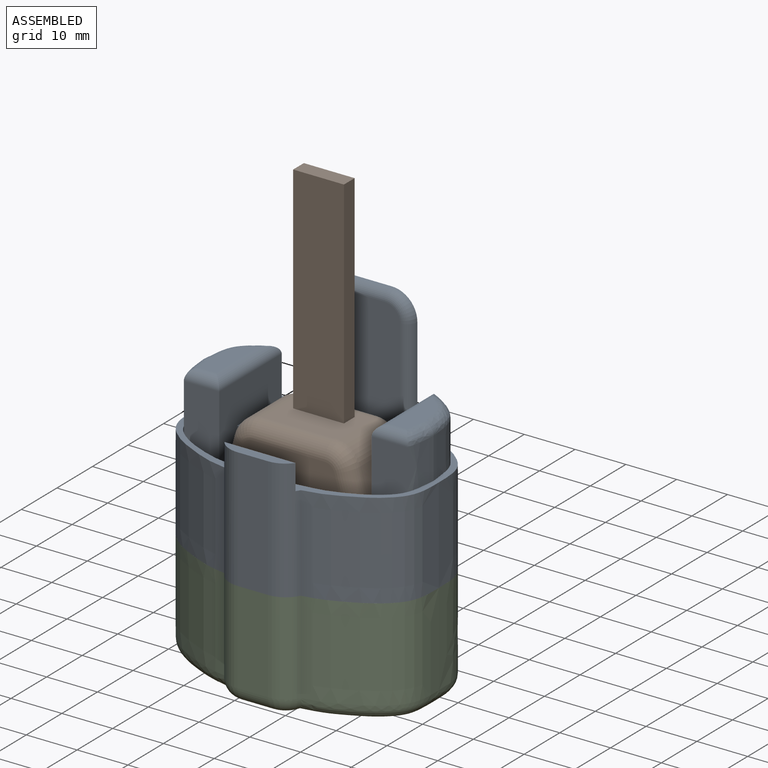
[diagram: assembled view]
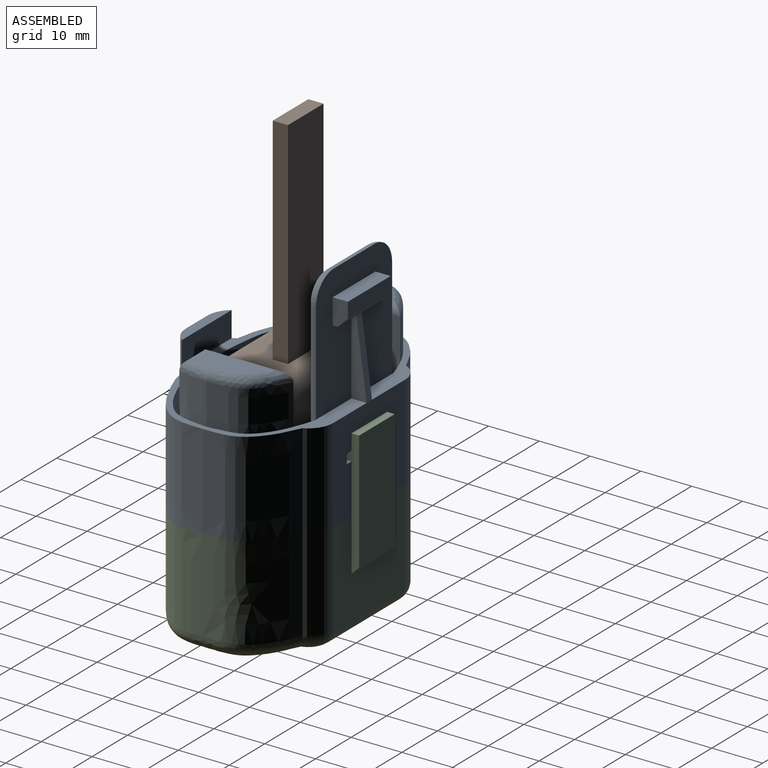
[diagram: assembled view, second angle]
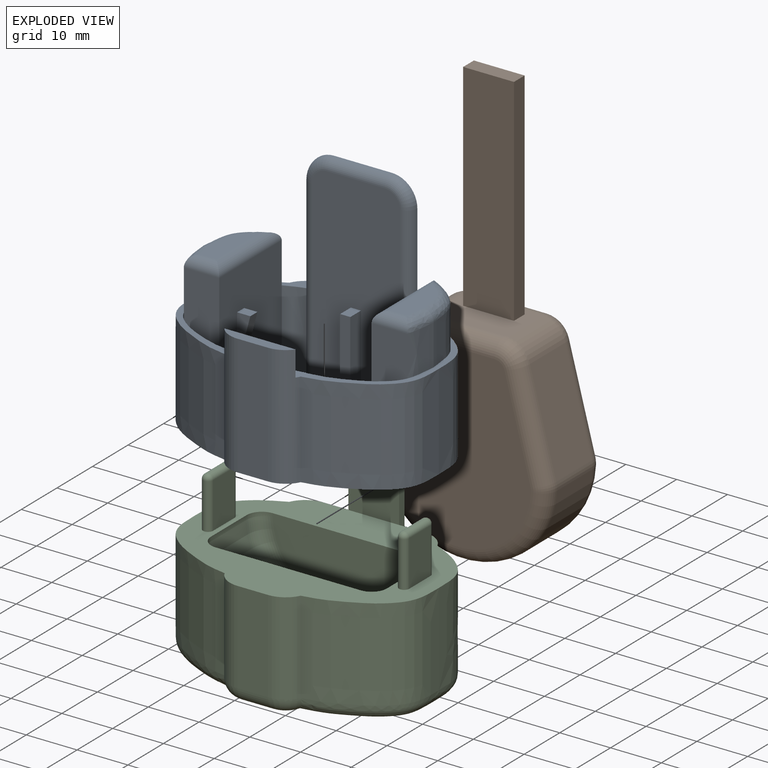
[diagram: exploded view]
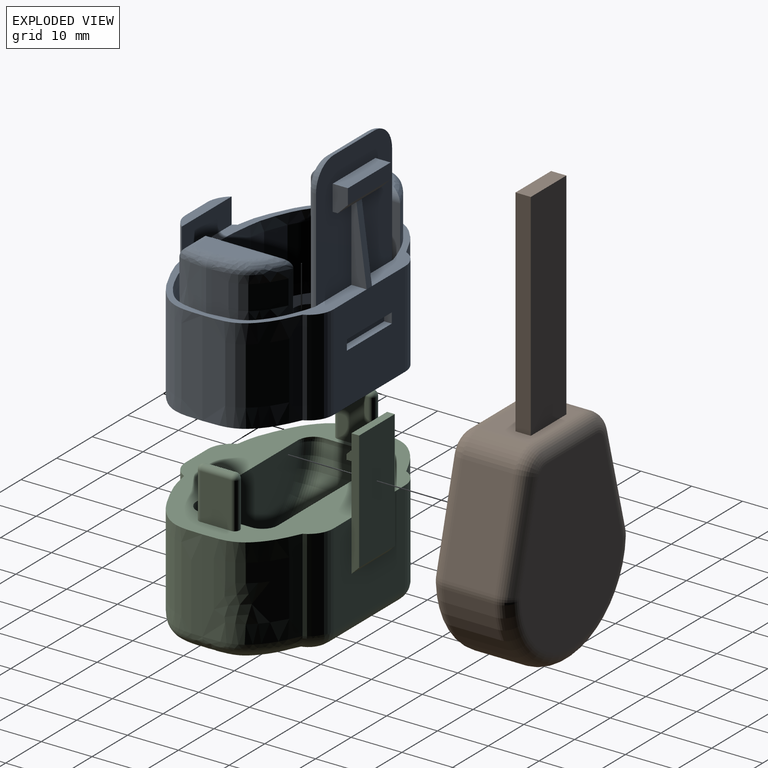
[diagram: exploded view, second angle]
ASSEMBLY  parts=3 mates=2
PART A: 108 faces, bbox 48.5x34.4x44.9 mm
  f0: plane 20.06x18.8mm, normal (0,1,0), area 351.2mm2, adj f12,f15,f57,f58,f92,f103,f104,f105
  f1: plane 2.62x2mm, normal (0,0,1), area 5.2mm2, adj f4,f5,f8,f78
  f2: plane 2.62x2mm, normal (0,0,1), area 5.2mm2, adj f21,f24,f32,f81
  f3: plane 3x2mm, normal (0,0,1), area 6mm2, adj f6,f7,f25,f83
  f4: plane 23.32x17.89mm, normal (1,0,0), area 319.7mm2, adj f1,f5,f8,f9,f17,f26,f39,f74
  f5: plane 9.91x2.62mm, normal (0,-1,0), area 13mm2, adj f1,f4,f78
  f6: plane 15x3mm, normal (1,0,0), area 45mm2, adj f3,f10,f25,f83
  f7: plane 15x3mm, normal (-1,0,0), area 45mm2, adj f3,f9,f25,f83
  f8: plane 9.91x2.62mm, normal (0,1,0), area 13mm2, adj f1,f4,f78
  f9: plane 14.02x5.55mm, normal (0,0,1), area 49.1mm2, adj f4,f7,f25,f26,f27,f61,f80,f83
  f10: plane 14.02x5.55mm, normal (0,0,1), area 49.1mm2, adj f6,f22,f23,f25,f32,f65,f83,f90
  f11: plane 15x3mm, normal (1,0,0), area 30mm2, adj f12,f13,f14,f15,f56
  f12: plane 1.52x0.05mm, normal (0,1,0), area 0.1mm2, adj f0,f11,f55,f56
  f13: plane 25x21.4mm, normal (0,1,0), area 441.8mm2, adj f11,f14,f15,f49,f50,f51,f52,f55
  f14: plane 5.25x1mm, normal (0,0,-1), area 5.3mm2, adj f11,f13,f52,f54
  f15: plane 48.1x32.01mm, normal (0,0,1), area 222.6mm2, adj f0,f11,f13,f16,f19,f20,f22,f23
  f16: extruded ~20.97x15mm, area 352mm2, adj f15,f17,f34,f35
  f17: plane 23x6.97mm, normal (0,-1,0), area 157.8mm2, adj f4,f16,f35,f42,f72,f79
  f18: plane 23x6.97mm, normal (0,-1,0), area 157.8mm2, adj f19,f32,f36,f44,f68,f87
  f19: extruded ~20.97x15mm, area 352mm2, adj f15,f18,f20,f36
  f20: plane 15x6mm, normal (1,0,0), area 90mm2, adj f15,f19,f36,f82
  f21: plane 9.91x2.62mm, normal (0,-1,0), area 13mm2, adj f2,f32,f81
  f22: plane 15x0.27mm, normal (0,-1,0), area 4.1mm2, adj f10,f15,f23,f65
  f23: extruded ~15x4.03mm, area 64.2mm2, adj f10,f15,f22,f32
  f24: plane 9.91x2.62mm, normal (0,1,0), area 13mm2, adj f2,f32,f81
  f25: plane 38x17.4mm, normal (0,-1,0), area 627.3mm2, adj f3,f6,f7,f9,f10,f61,f62,f63
  f26: extruded ~15x4.03mm, area 64.2mm2, adj f4,f9,f15,f27
  f27: plane 15x0.27mm, normal (0,-1,0), area 4.1mm2, adj f9,f15,f26,f61
  f28: extruded ~18.79x13.07mm, area 331mm2, adj f15,f33,f57,f92
  f29: extruded ~18.79x13.07mm, area 331mm2, adj f15,f30,f58,f92
  f30: extruded ~18.79x16.54mm, area 470.6mm2, adj f15,f29,f59,f92
  f31: plane 23.79x6.03mm, normal (0,-1,0), area 143.3mm2, adj f38,f59,f60,f92
  f32: plane 23.32x17.89mm, normal (-1,0,0), area 319.7mm2, adj f2,f10,f18,f21,f23,f24,f47,f66
  f33: extruded ~18.79x16.54mm, area 470.6mm2, adj f15,f28,f60,f92
  f34: plane 15x6mm, normal (-1,0,0), area 90mm2, adj f15,f16,f35,f82
  f35: plane 21.14x8.22mm, normal (0,0,1), area 97.7mm2, adj f16,f17,f34,f79,f82
  f36: plane 21.14x8.22mm, normal (0,0,1), area 97.7mm2, adj f18,f19,f20,f82,f87
  f37: plane 14.03x5mm, normal (0,1,0), area 70.1mm2, adj f15,f38,f59,f60
  f38: plane 14.03x2mm, normal (0,0,1), area 23.2mm2, adj f31,f37,f59,f60
  f39: extruded ~10.57x8mm, area 113.9mm2, adj f4,f15,f40,f76
  f40: extruded ~8x1mm, area 8mm2, adj f15,f39,f41,f77
  f41: extruded ~8x1mm, area 8mm2, adj f15,f40,f42,f75
  f42: extruded ~8x5mm, area 40.9mm2, adj f15,f17,f41,f73
  f43: plane 12.31x3.99mm, normal (0,0,1), area 40.2mm2, adj f72,f73,f74,f75,f76,f77
  f44: extruded ~8x5mm, area 40.9mm2, adj f15,f18,f45,f70
  f45: extruded ~8x1mm, area 8mm2, adj f15,f44,f46,f71
  f46: extruded ~8x1mm, area 8mm2, adj f15,f45,f47,f69
  f47: extruded ~10.57x8mm, area 113.9mm2, adj f15,f32,f46,f67
  f48: plane 12.32x4mm, normal (0,0,1), area 40.1mm2, adj f66,f67,f68,f69,f70,f71
  f49: plane 5.25x1mm, normal (0,0,-1), area 5.3mm2, adj f13,f50,f54,f55
  f50: plane 5x3mm, normal (-1,0,0), area 13mm2, adj f13,f49,f51,f53,f54
  f51: plane 12x3mm, normal (0,0,1), area 36mm2, adj f13,f50,f52,f53
  f52: plane 5x3mm, normal (1,0,0), area 13mm2, adj f13,f14,f51,f53,f54
  f53: plane 12x3mm, normal (0,1,0), area 36mm2, adj f50,f51,f52,f54
  f54: plane 12x2mm, normal (0,0.71,-0.71), area 33.9mm2, adj f14,f49,f50,f52,f53,f56
  f55: plane 15x3mm, normal (-1,0,0), area 30mm2, adj f12,f13,f15,f49,f56
  f56: plane 14.96x2mm, normal (0,0.99,0.13), area 22.6mm2, adj f11,f12,f54,f55
  f57: cylinder r=5mm len=18.79mm, axis (0,0,1), area 107.6mm2, adj f0,f15,f28,f92
  f58: cylinder r=5mm len=18.79mm, axis (0,0,1), area 107.6mm2, adj f0,f15,f29,f92
  f59: cylinder r=5mm len=23.79mm, axis (0,0,1), area 127.8mm2, adj f15,f30,f31,f37,f38,f92
  f60: cylinder r=5mm len=23.79mm, axis (0,0,1), area 127.8mm2, adj f15,f31,f33,f37,f38,f92
  f61: cylinder r=2mm len=35mm, axis (0,0,-1), area 110mm2, adj f9,f13,f25,f27,f62
  f62: torus R=3mm, axis (0,-1,0), area 21.1mm2, adj f13,f25,f61,f63
  f63: cylinder r=2mm len=11.4mm, axis (1,0,0), area 35.8mm2, adj f13,f25,f62,f64
  f64: torus R=3mm, axis (0,-1,0), area 21.1mm2, adj f13,f25,f63,f65
  f65: cylinder r=2mm len=35mm, axis (0,0,1), area 110mm2, adj f10,f13,f22,f25,f64
  f66: cylinder r=2mm len=17.57mm, axis (0,1,0), area 46.9mm2, adj f32,f48,f67,f68
  f67: bspline ~15.46x9.37mm, area 37.2mm2, adj f47,f48,f66,f69
  f68: cylinder r=2mm len=6.97mm, axis (1,0,0), area 16.5mm2, adj f18,f48,f66,f70
  f69: bspline ~2.13x2mm, area 2.9mm2, adj f46,f48,f67,f71
  f70: bspline ~14.16x3.62mm, area 13mm2, adj f44,f48,f68,f71
  f71: bspline ~2.13x2mm, area 2.9mm2, adj f45,f48,f69,f70
  f72: cylinder r=2mm len=6.97mm, axis (1,0,0), area 16.5mm2, adj f17,f43,f73,f74
  f73: bspline ~14.16x3.62mm, area 13mm2, adj f42,f43,f72,f75
  f74: cylinder r=2mm len=17.57mm, axis (0,1,0), area 46.9mm2, adj f4,f43,f72,f76
  f75: bspline ~2.12x2mm, area 2.9mm2, adj f41,f43,f73,f77
  f76: bspline ~20.06x9.77mm, area 37.2mm2, adj f39,f43,f74,f77
  f77: bspline ~2.13x2mm, area 2.9mm2, adj f40,f43,f75,f76
  f78: plane 18.11x10mm, normal (0.97,0,-0.26), area 105.3mm2, adj f1,f4,f5,f8,f79,f80,f84
  f79: cylinder r=3mm len=8.97mm, axis (0.26,0,0.97), area 21.7mm2, adj f4,f17,f35,f78,f82,f88,f92
  f80: cylinder r=3mm len=8.97mm, axis (-0.26,0,-0.97), area 26.6mm2, adj f4,f9,f78,f83,f91,f92
  f81: plane 18.11x10mm, normal (-0.97,0,-0.26), area 105.3mm2, adj f2,f21,f24,f32,f85,f87,f90
  f82: plane 28.49x18.79mm, normal (0,1,0), area 134.1mm2, adj f15,f20,f34,f35,f36,f79,f87,f92
  f83: plane 28.49x18.79mm, normal (0,-1,0), area 134.1mm2, adj f3,f6,f7,f9,f10,f80,f90,f92
  f84: cylinder r=5mm len=10mm, axis (0,1,0), area 6.9mm2, adj f78,f88,f91,f92
  f85: cylinder r=5mm len=10mm, axis (0,1,0), area 6.9mm2, adj f81,f86,f89,f92
  f86: torus R=2mm, axis (0,-1,0), area 1.3mm2, adj f85,f87,f92
  f87: cylinder r=3mm len=8.97mm, axis (0.26,0,-0.97), area 21.7mm2, adj f18,f32,f36,f81,f82,f86,f92
  f88: torus R=2mm, axis (0,-1,0), area 1.3mm2, adj f79,f84,f92
  f89: torus R=2mm, axis (0,-1,0), area 1.3mm2, adj f85,f90,f92
  f90: cylinder r=3mm len=8.97mm, axis (-0.26,0,0.97), area 26.6mm2, adj f10,f32,f81,f83,f89,f92
  f91: torus R=2mm, axis (0,-1,0), area 1.3mm2, adj f80,f84,f92
  f92: plane 48.5x34.41mm, normal (0,0,-1), area 725.9mm2, adj f0,f28,f29,f30,f31,f33,f57,f58
  f93: plane 10x8mm, normal (-1,0,0), area 80mm2, adj f92,f94,f96,f97
  f94: plane 10x2mm, normal (0,-1,0), area 20mm2, adj f92,f93,f95,f97
  f95: plane 10x8mm, normal (1,0,0), area 80mm2, adj f92,f94,f96,f97
  f96: plane 10x2mm, normal (0,1,0), area 20mm2, adj f92,f93,f95,f97
  f97: plane 8x2mm, normal (0,0,-1), area 16mm2, adj f93,f94,f95,f96
  f98: plane 10x2mm, normal (0,-1,0), area 20mm2, adj f92,f99,f101,f102
  f99: plane 10x8mm, normal (1,0,0), area 80mm2, adj f92,f98,f100,f102
  f100: plane 10x2mm, normal (0,1,0), area 20mm2, adj f92,f99,f101,f102
  f101: plane 10x8mm, normal (-1,0,0), area 80mm2, adj f92,f98,f100,f102
  f102: plane 8x2mm, normal (0,0,-1), area 16mm2, adj f98,f99,f100,f101
  f103: plane 2x1.5mm, normal (1,0,0), area 3mm2, adj f0,f104,f106,f107
  f104: plane 12.63x1.5mm, normal (0,0,-1), area 18.9mm2, adj f0,f103,f105,f107
  f105: plane 2x1.5mm, normal (-1,0,0), area 3mm2, adj f0,f104,f106,f107
  f106: plane 12.63x1.5mm, normal (0,0,1), area 18.9mm2, adj f0,f103,f105,f107
  f107: plane 12.63x2mm, normal (0,1,0), area 25.3mm2, adj f103,f104,f105,f106
PART B: 31 faces, bbox 37.5x85.3x16 mm
  f0: plane 19.6x10mm, normal (-0.97,-0.26,0), area 202.7mm2, adj f7,f9,f12,f19
  f1: plane 14.3x10mm, normal (0,-1,0), area 113mm2, adj f8,f9,f11,f20,f26,f28,f29,f30
  f2: plane 19.6x10mm, normal (0.97,-0.26,0), area 202.7mm2, adj f6,f8,f15,f24
  f3: cylinder r=17.35mm len=34.66mm, axis (0,0,-1), area 528.3mm2, adj f6,f7,f16,f23
  f4: plane 35.35x28.67mm, normal (0,0,1), area 804.2mm2, adj f10,f11,f12,f13,f14,f15,f16,f17
  f5: plane 35.35x28.67mm, normal (0,0,-1), area 804.2mm2, adj f18,f19,f20,f21,f22,f23,f24,f25
  f6: cylinder r=5mm len=10mm, axis (0,0,-1), area 15.3mm2, adj f2,f3,f17,f25
  f7: cylinder r=5mm len=10mm, axis (0,0,-1), area 15.3mm2, adj f0,f3,f14,f21
  f8: cylinder r=5mm len=10mm, axis (0,0,1), area 65.6mm2, adj f1,f2,f13,f22
  f9: cylinder r=5mm len=10mm, axis (0,0,-1), area 65.6mm2, adj f0,f1,f10,f18
  f10: torus R=2mm, axis (0,0,1), area 24.2mm2, adj f4,f9,f11,f12
  f11: cylinder r=3mm len=14.3mm, axis (-1,0,0), area 67.4mm2, adj f1,f4,f10,f13
  f12: cylinder r=3mm len=20.36mm, axis (-0.26,0.97,0), area 95.5mm2, adj f0,f4,f10,f14
  f13: torus R=2mm, axis (0,0,1), area 24.2mm2, adj f4,f8,f11,f15
  f14: torus R=2mm, axis (0,0,1), area 5.7mm2, adj f4,f7,f12,f16
  f15: cylinder r=3mm len=20.36mm, axis (-0.26,-0.97,0), area 95.5mm2, adj f2,f4,f13,f17
  f16: torus R=14.35mm, axis (0,0,1), area 233.3mm2, adj f3,f4,f14,f17
  f17: torus R=2mm, axis (0,0,1), area 5.7mm2, adj f4,f6,f15,f16
  f18: torus R=2mm, axis (0,0,1), area 24.2mm2, adj f5,f9,f19,f20
  f19: cylinder r=3mm len=20.36mm, axis (0.26,-0.97,0), area 95.5mm2, adj f0,f5,f18,f21
  f20: cylinder r=3mm len=14.3mm, axis (1,0,0), area 67.4mm2, adj f1,f5,f18,f22
  f21: torus R=2mm, axis (0,0,1), area 5.7mm2, adj f5,f7,f19,f23
  f22: torus R=2mm, axis (0,0,1), area 24.2mm2, adj f5,f8,f20,f24
  f23: torus R=14.35mm, axis (0,0,1), area 233.3mm2, adj f3,f5,f21,f25
  f24: cylinder r=3mm len=20.36mm, axis (0.26,0.97,0), area 95.5mm2, adj f2,f5,f22,f25
  f25: torus R=2mm, axis (0,0,1), area 5.7mm2, adj f5,f6,f23,f24
  f26: plane 42.5x3mm, normal (-1,0,0), area 127.5mm2, adj f1,f27,f29,f30
  f27: plane 10x3mm, normal (0,-1,0), area 30mm2, adj f26,f28,f29,f30
  f28: plane 42.5x3mm, normal (1,0,0), area 127.5mm2, adj f1,f27,f29,f30
  f29: plane 42.5x10mm, normal (0,0,1), area 425mm2, adj f1,f26,f27,f28
  f30: plane 42.5x10mm, normal (0,0,-1), area 425mm2, adj f1,f26,f27,f28
PART C: 61 faces, bbox 48.1x35.5x36.2 mm
  f0: plane 10x10mm, normal (0,-1,0), area 100mm2, adj f1,f52,f54,f58
  f1: plane 48.1x34.01mm, normal (0,0,1), area 727.6mm2, adj f0,f5,f6,f7,f8,f9,f10,f11
  f2: cylinder r=17.35mm len=34.66mm, axis (0,1,0), area 528.3mm2, adj f3,f4,f7,f12
  f3: torus R=14.35mm, axis (0,-1,0), area 233.3mm2, adj f2,f6,f9,f14
  f4: torus R=14.35mm, axis (0,-1,0), area 233.3mm2, adj f2,f5,f11,f13
  f5: torus R=2mm, axis (0,-1,0), area 3.7mm2, adj f1,f4,f7,f13,f15
  f6: torus R=2mm, axis (0,-1,0), area 3.7mm2, adj f1,f3,f7,f14,f16
  f7: cylinder r=5mm len=10mm, axis (0,1,0), area 8.5mm2, adj f1,f2,f5,f6
  f8: cylinder r=3mm len=0.38mm, axis (0.26,0,-0.97), area 0mm2, adj f1,f9,f14
  f9: torus R=2mm, axis (0,-1,0), area 3.7mm2, adj f1,f3,f8,f12,f14
  f10: cylinder r=3mm len=0.38mm, axis (-0.26,0,0.97), area 0mm2, adj f1,f11,f13
  f11: torus R=2mm, axis (0,-1,0), area 3.7mm2, adj f1,f4,f10,f12,f13
  f12: cylinder r=5mm len=10mm, axis (0,1,0), area 8.5mm2, adj f1,f2,f9,f11
  f13: plane 28.67x14.36mm, normal (0,-1,0), area 323.7mm2, adj f1,f4,f5,f10,f11,f15
  f14: plane 28.67x14.36mm, normal (0,1,0), area 323.7mm2, adj f1,f3,f6,f8,f9,f16
  f15: cylinder r=3mm len=0.38mm, axis (-0.26,0,-0.97), area 0mm2, adj f1,f5,f13
  f16: cylinder r=3mm len=0.38mm, axis (0.26,0,0.97), area 0mm2, adj f1,f6,f14
  f17: plane 42.08x28.01mm, normal (0,0,-1), area 928.4mm2, adj f18,f19,f20,f21,f22,f23,f24,f25
  f18: bspline ~15.44x12.45mm, area 80.6mm2, adj f17,f23,f24,f37
  f19: cylinder r=3mm len=20.04mm, axis (1,0,0), area 94.4mm2, adj f17,f24,f25,f36
  f20: bspline ~15.44x12.45mm, area 80.6mm2, adj f17,f21,f25,f35
  f21: bspline ~19.88x16.24mm, area 115.6mm2, adj f17,f20,f26,f34
  f22: cylinder r=3mm len=6.03mm, axis (-1,0,0), area 28.4mm2, adj f17,f26,f27,f33
  f23: bspline ~19.88x16.24mm, area 115.6mm2, adj f17,f18,f27,f31
  f24: torus R=2mm, axis (0,0,1), area 24.8mm2, adj f17,f18,f19,f28
  f25: torus R=2mm, axis (0,0,1), area 24.8mm2, adj f17,f19,f20,f29
  f26: torus R=2mm, axis (0,0,1), area 25.8mm2, adj f17,f21,f22,f32
  f27: torus R=2mm, axis (0,0,1), area 25.8mm2, adj f17,f22,f23,f30
  f28: cylinder r=5mm len=18.21mm, axis (0,0,1), area 104.3mm2, adj f1,f24,f36,f37
  f29: cylinder r=5mm len=18.21mm, axis (0,0,1), area 104.3mm2, adj f1,f25,f35,f36
  f30: cylinder r=5mm len=18.21mm, axis (0,0,1), area 101.4mm2, adj f1,f27,f31,f33
  f31: extruded ~18.21x16.54mm, area 456.2mm2, adj f1,f23,f30,f37
  f32: cylinder r=5mm len=18.21mm, axis (0,0,1), area 101.4mm2, adj f1,f26,f33,f34
  f33: plane 18.21x6.03mm, normal (0,-1,0), area 109.8mm2, adj f1,f22,f30,f32
  f34: extruded ~18.21x16.54mm, area 456.2mm2, adj f1,f21,f32,f35
  f35: extruded ~18.21x13.07mm, area 320.9mm2, adj f1,f20,f29,f34
  f36: plane 20.04x18.21mm, normal (0,1,0), area 265mm2, adj f1,f19,f28,f29,f52,f54,f57
  f37: extruded ~18.21x13.07mm, area 320.9mm2, adj f1,f18,f28,f31
  f38: plane 9x6mm, normal (-1,0,0), area 54mm2, adj f1,f43,f44,f46
  f39: plane 9x6mm, normal (1,0,0), area 54mm2, adj f1,f43,f44,f46
  f40: plane 9x6mm, normal (1,0,0), area 54mm2, adj f1,f42,f48,f50
  f41: plane 9x6mm, normal (-1,0,0), area 54mm2, adj f1,f42,f48,f50
  f42: cylinder r=1mm len=6mm, axis (0,-1,0), area 18.8mm2, adj f40,f41,f49,f51
  f43: cylinder r=1mm len=6mm, axis (0,-1,0), area 18.8mm2, adj f38,f39,f45,f47
  f44: cylinder r=1mm len=9mm, axis (0,0,1), area 28.3mm2, adj f1,f38,f39,f45
  f45: sphere r=1mm, area 3.1mm2, adj f43,f44
  f46: cylinder r=1mm len=9mm, axis (0,0,-1), area 28.3mm2, adj f1,f38,f39,f47
  f47: sphere r=1mm, area 3.1mm2, adj f43,f46
  f48: cylinder r=1mm len=9mm, axis (0,0,1), area 28.3mm2, adj f1,f40,f41,f49
  f49: sphere r=1mm, area 3.1mm2, adj f42,f48
  f50: cylinder r=1mm len=9mm, axis (0,0,-1), area 28.3mm2, adj f1,f40,f41,f51
  f51: sphere r=1mm, area 3.1mm2, adj f42,f50
  f52: plane 25x2.5mm, normal (1,0,0), area 37.9mm2, adj f0,f36,f53,f55,f56,f57,f58,f59
  f53: plane 23.5x10mm, normal (0,1,0), area 235mm2, adj f52,f54,f56,f57
  f54: plane 25x2.5mm, normal (-1,0,0), area 37.9mm2, adj f0,f36,f53,f55,f56,f57,f58,f59
  f55: plane 10x3mm, normal (0,-1,0), area 30mm2, adj f52,f54,f56,f60
  f56: plane 10x1.5mm, normal (0,0,1), area 15mm2, adj f52,f53,f54,f55
  f57: plane 10x1.5mm, normal (0,0.71,-0.71), area 21.2mm2, adj f36,f52,f53,f54
  f58: plane 10x1mm, normal (0,0,-1), area 10mm2, adj f0,f52,f54,f59
  f59: plane 10x1mm, normal (0,-1,0), area 10mm2, adj f52,f54,f58,f60
  f60: plane 10x1mm, normal (0,-0.71,0.71), area 14.1mm2, adj f52,f54,f55,f59
PLACE A t=(-23.64,24.02,-9.34)mm
PLACE B rot(axis=(0,-0.71,0.71),180deg) t=(-23.64,32.02,-28.14)mm
PLACE C t=(-23.64,24.02,-9.34)mm
MATE fastened B.f3 <-> C.f2  axis (0,1,0) through (-23.64,19.02,-28.14)mm
MATE fastened C.f1 <-> A.f92  axis (0,0,1) through (-41.94,24.02,-28.13)mm
